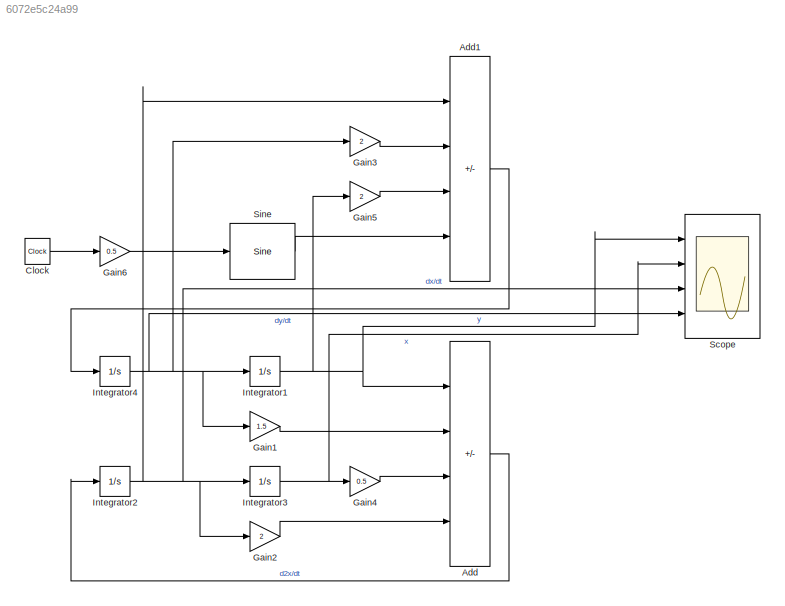
MODEL slx_6072e5c24a99
KIND model
CONFIG AbsTol = auto
CONFIG EnableMultiTasking = off
CONFIG FixedStep = auto
CONFIG MaxStep = auto
CONFIG MinStep = auto
CONFIG RelTol = 1e-3
CONFIG SampleTimeConstraint = Unconstrained
CONFIG SolverName = VariableStepAuto
CONFIG StartTime = 0.0
CONFIG StopTime = 5
BLOCK [Sum] Add
  IconShape = rectangular
  Inputs = ----
  Ports = [4, 1]
BLOCK [Sum] Add1
  IconShape = rectangular
  Inputs = ---+
  Ports = [4, 1]
BLOCK [Clock] Clock
BLOCK [Gain] Gain1
  Gain = 1.5
BLOCK [Gain] Gain2
  Gain = 2
BLOCK [Gain] Gain3
  Gain = 2
BLOCK [Gain] Gain4
  Gain = 0.5
BLOCK [Gain] Gain5
  Gain = 2
BLOCK [Gain] Gain6
  Gain = 0.5
BLOCK [Integrator] Integrator1
  Ports = [1, 1]
BLOCK [Integrator] Integrator2
  Ports = [1, 1]
BLOCK [Integrator] Integrator3
  Ports = [1, 1]
BLOCK [Integrator] Integrator4
  Ports = [1, 1]
BLOCK [Scope] Scope
  Floating = off
  NumInputPorts = 4
  Ports = [4]
  ScopeSpecificationString = Simulink.scopes.TimeScopeBlockCfg('CurrentConfiguration', extmgr.ConfigurationSet(extmgr.Configuration('Core','General UI',true),extmgr.Configuration('Core','Source UI',true),extmgr.Configuration('Sources','WiredSimulink',true),extmgr.Configuration('Visuals','Time Domain',true,'SerializedDisplays',{struct('MinYLimReal','-0.43838','MaxYLimReal','0.37864','YLabelReal','','MinYLimMag','0.00000','MaxY...<+1415ch>
BLOCK [Reference] Sine  REF=simulink/Lookup
Tables/Sine
  Ports = [1, 1]
  SourceBlock = simulink/Lookup\nTables/Sine
  SourceProductBaseCode = SL
  SourceType = Sine and Cosine
LINE Add1:1 -> Integrator4:1
LINE Add:1 -> Integrator2:1
LINE Clock:1 -> Gain6:1
LINE Gain1:1 -> Add:2
LINE Gain2:1 -> Add:4
LINE Gain3:1 -> Add1:2
LINE Gain4:1 -> Add:3
LINE Gain5:1 -> Add1:3
LINE Gain6:1 -> Sine:1
NET Integrator1:1 -> Add:1, Gain5:1, Scope:1
NET Integrator2:1 -> Add1:1, Gain2:1, Integrator3:1, Scope:3
NET Integrator3:1 -> Gain4:1, Scope:2
NET Integrator4:1 -> Gain1:1, Gain3:1, Integrator1:1, Scope:4
LINE Sine:1 -> Add1:4
note: NET lines group one-source signal fan-out (src -> all destinations, sorted); 1:1 wires keep LINE
